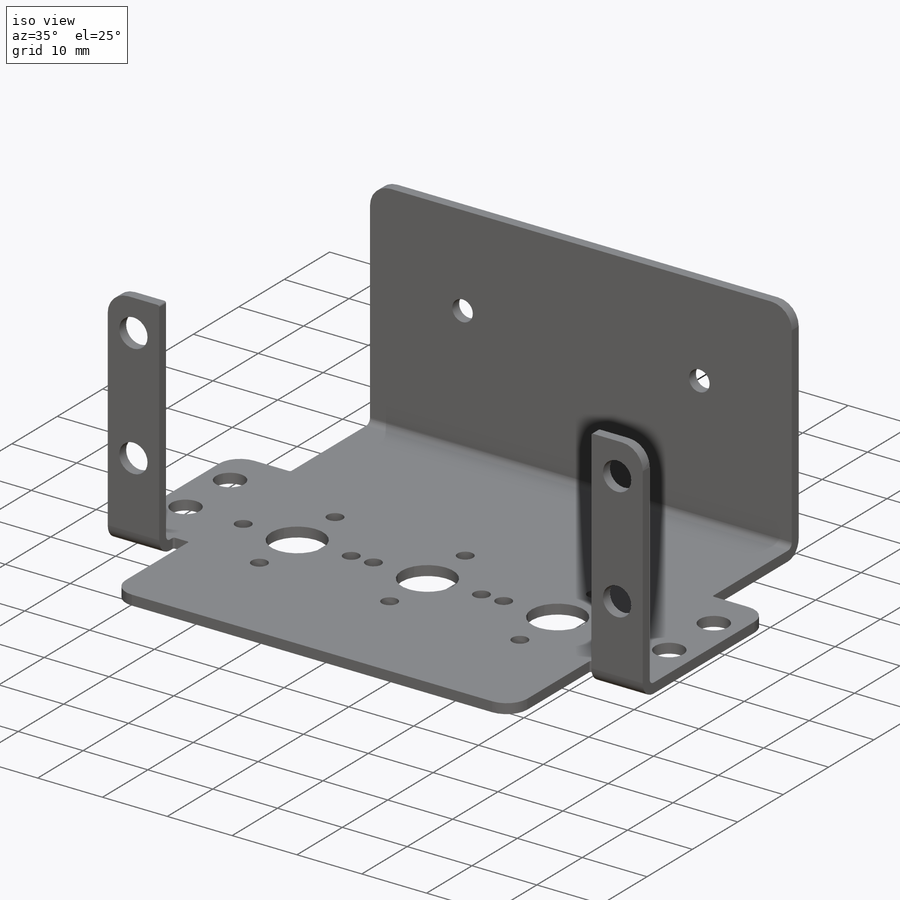
[diagram: iso view]
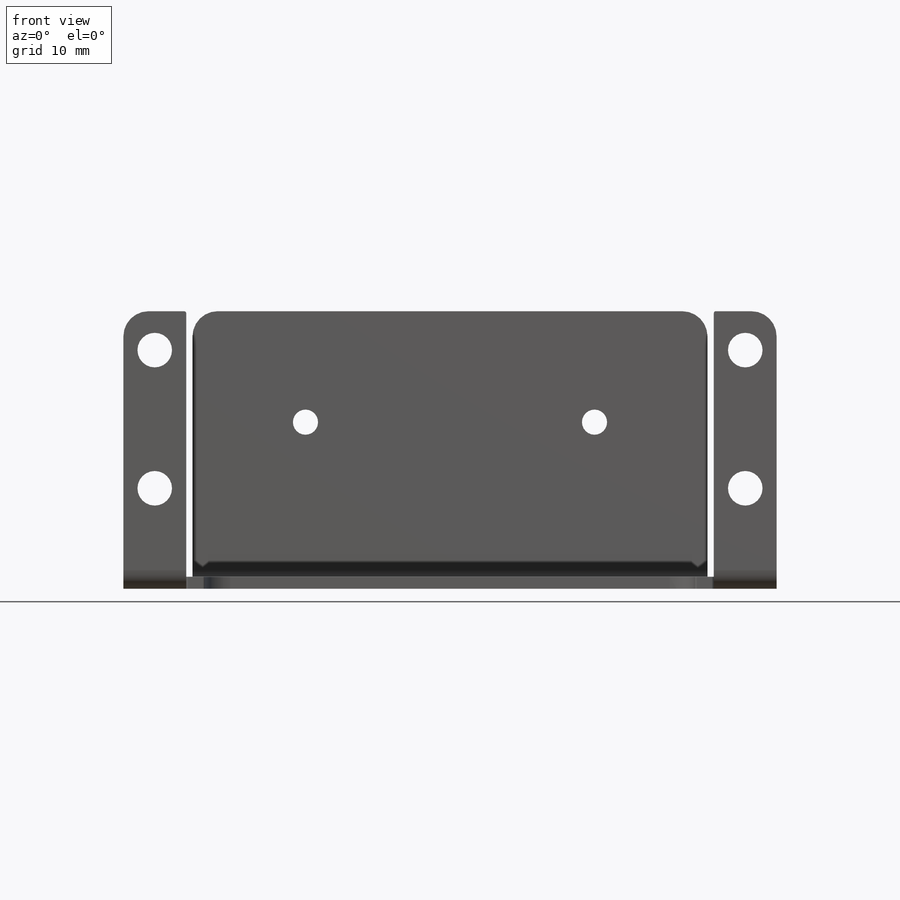
[diagram: front view]
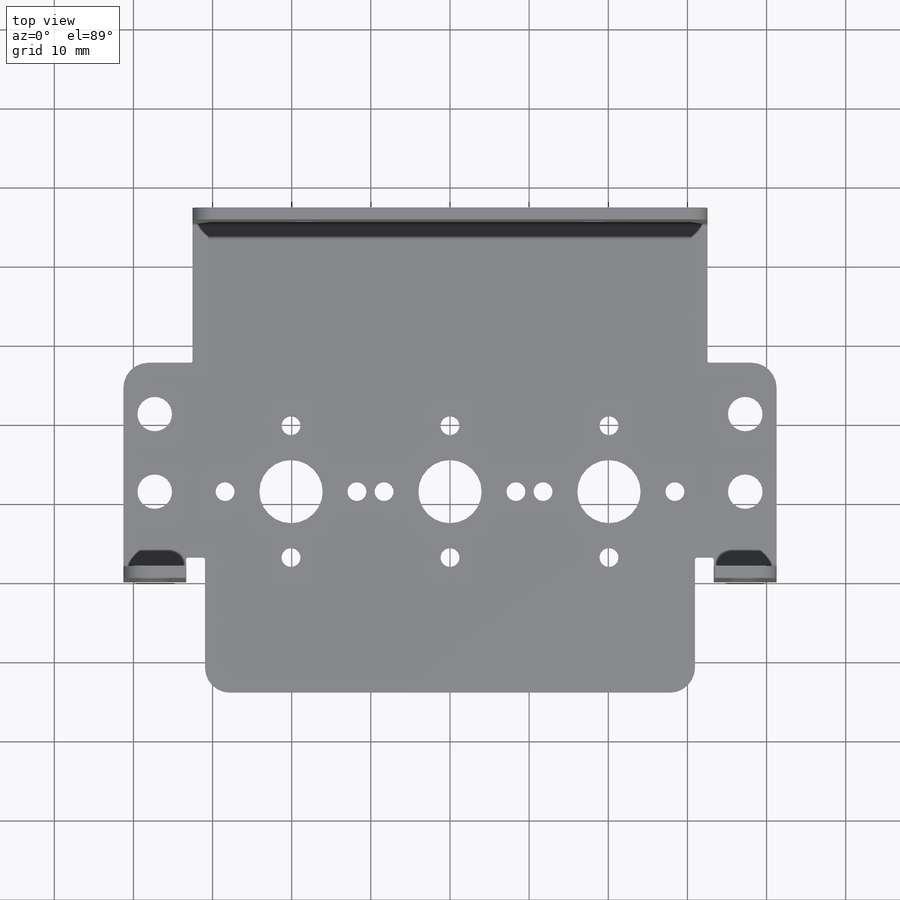
[diagram: top view]
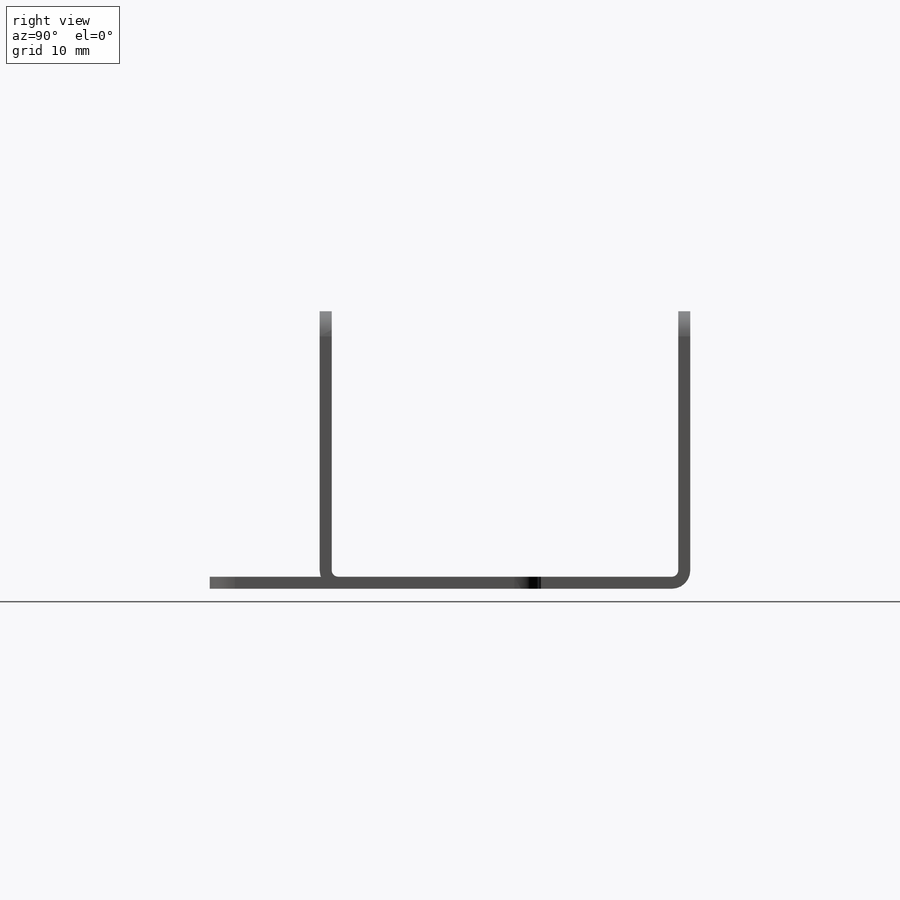
[diagram: right view]
SOLIDWORKS PART (.sldprt)
format: sldprt  version: not decoded by parser v0  size: 501,760 bytes
history: native  units: mm
features: sketch x10, sheet_metal_op x5, cut_extrude x4, fillet x2, material x1 + 3 further entries (+11 scaffold rows collapsed; 1 parser-record rows omitted)
feature tree (37):
  scaffold x11  (default folders/planes/origin — collapsed)
  material  "5052-H32"
  sketch  "Sketch1"  dims[c1.D1=23.7998mm c1.D2=35.4076mm c1.D3=61.9252mm c1.D4=17.0688mm c1.D5=65.0748mm c1.D6=7.9375mm c1.D7=7.9375mm c1.D8=17.526mm c1.D9=26.2636mm c1.D10=82.55mm c2.D6=82.55mm]
  sheet_metal_op  "Sheet-Metal1"
  sheet_metal_op  "Base-Flange1"
  sketch  "Sketch5"  dims[c1.D1=0.8128mm c1.D4=90.0deg c1.D5=1.0 c1.D8=~0.79375mm c1.D9=~0.79375mm c2.D1=0.8128mm c2.D2=500.0mm c2.D3=0.0mm c2.D6=10.0mm c2.D7=35.0774mm]
  sheet_metal_op  "Edge-Flange2"
  sketch  "Sketch10"
  sketch  "Sketch11"
  sheet_metal_op  "EdgeBend2"
  sheet_metal_op  "EdgeBend3"
  sketch  "Sketch13"  dims[c1.D2=2.3876mm c1.D3=8.001mm c1.D6=4.3688mm c1.D1=8.3312mm c1.D4=8.0264mm c1.D5=9.8552mm c2.D4=49.3268mm c2.D7=1.7272mm c3.D4=7.8232mm c3.D1=74.6252mm c4.D4=14.2748mm c4.D2=25.527mm c4.D3=35.3314mm]
  cut_extrude  "Extrude2"  [1 undecoded]
  sketch  "Sketch14"  dims[c1.D3=4.3688mm c1.D1=5.08mm c1.D2=9.8552mm c2.D1=74.6252mm c2.D4=5.08mm c2.D5=29.9974mm c3.D4=30.1625mm c3.D2=12.7mm]
  sketch  "Sketch15"  dims[c1.D3=3.175mm c1.D1=14.2875mm c1.D2=36.5252mm c2.D1=21.0566mm]
  cut_extrude  "Extrude4"  [1 undecoded]
  cut_extrude  "Cut-Extrude1"  [1 undecoded]
  sketch  "Sketch16"  dims[c1.D3=8.001mm c1.D5=2.3876mm c1.D1=35.3314mm c1.D2=16.6624mm c1.D4=33.3248mm c2.D2=16.6624mm c2.D4=40.1828mm]
  cut_extrude  "Cut-Extrude2"  [1 undecoded]
  fillet  "Fillet1"  Radius=3.175mm
  fillet  "Fillet2"  Radius=0.254mm
  "Flat-Pattern1"
  sketch  "Bend-Lines1"
  sketch  "Bounding-Box1"
  "Flatten-<EdgeBend2>1"
  "Flatten-<EdgeBend3>1"
  parser-record x1  (decoder bookkeeping rows leaked as tree rows — omitted from the tree; the rows remain in map.json)
decode coverage: 8 of 21 modeling features carry decoded parameters; 3 rows unclassified (native names shown)
note: ~ marks probable driven/reference dimensions
note: 4 parameter values undecoded
summary: no parameter record found for 4 features
note: suppression state not decoded; provenance and decode notes live in map.json
